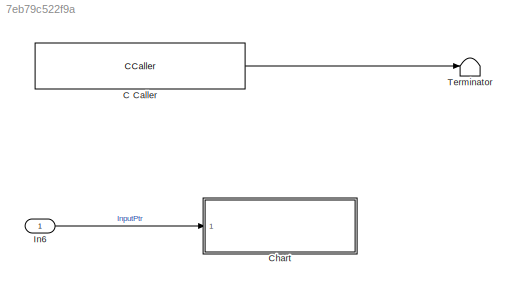
MODEL slx_7eb79c522f9a
KIND model
CONFIG AbsTol = auto
CONFIG EnableMultiTasking = off
CONFIG FixedStep = 0.01
CONFIG MaxStep = auto
CONFIG MinStep = auto
CONFIG RelTol = 1e-3
CONFIG SampleTimeConstraint = Unconstrained
CONFIG Solver = FixedStepAuto
CONFIG SolverName = FixedStepAuto
CONFIG StartTime = 0.0
CONFIG StopTime = 10.0
BLOCK [CCaller] C Caller
  Commented = on
  FunctionName = WritePtr
  PortSpecificationStruct = %)30     .    Z $   8    (     @         %    "     $    !     0         %  0 "0    $    V    07)G3F%M90  4&]R=$YA;64 4V-O<&4     26YD97@     5'EP90      4VEZ90         .    .     8    (    !          %    "     $    &     0         0    !@   %!T<E9A<@  #@   #@    &    "     0         !0    @    !    !@    $         $     8   !0=')687(   X    X    !@    @    $          4    (     0    8    !      ...<+267ch>
  Ports = [0, 1]
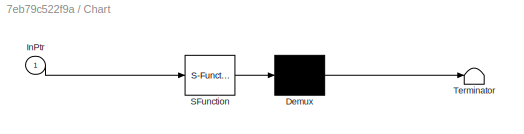
BLOCK [SubSystem] Chart
  ErrorFcn = Stateflow.Translate.translate
  PermitHierarchicalResolution = ExplicitOnly
  Ports = [1]
  RequestExecContextInheritance = off
  SFBlockType = Chart
  TreatAsAtomicUnit = on
BLOCK [Demux] Chart/ Demux 
  Outputs = 1
  Ports = [1, 1]
BLOCK [S-Function] Chart/ SFunction 
  EnableBusSupport = on
  FunctionName = sf_sfun
  PortCounts = [1 1]
  Ports = [1, 1]
  SFcnIsStateOwnerBlock = off
  SFunctionDeploymentMode = off
  Tag = Stateflow S-Function Temp7 3
BLOCK [Terminator] Chart/ Terminator 
BLOCK [Inport] Chart/InPtr
  IconDisplay = Port number
BLOCK [Inport] In6
  IconDisplay = Port number
BLOCK [Terminator] Terminator
LINE C Caller:1 -> Terminator:1
LINE In6:1 -> Chart:1
CHART Chart states=1 transitions=1
  STATE_LABEL 'Init\nen:\nWritePtr(&InPtr);'
